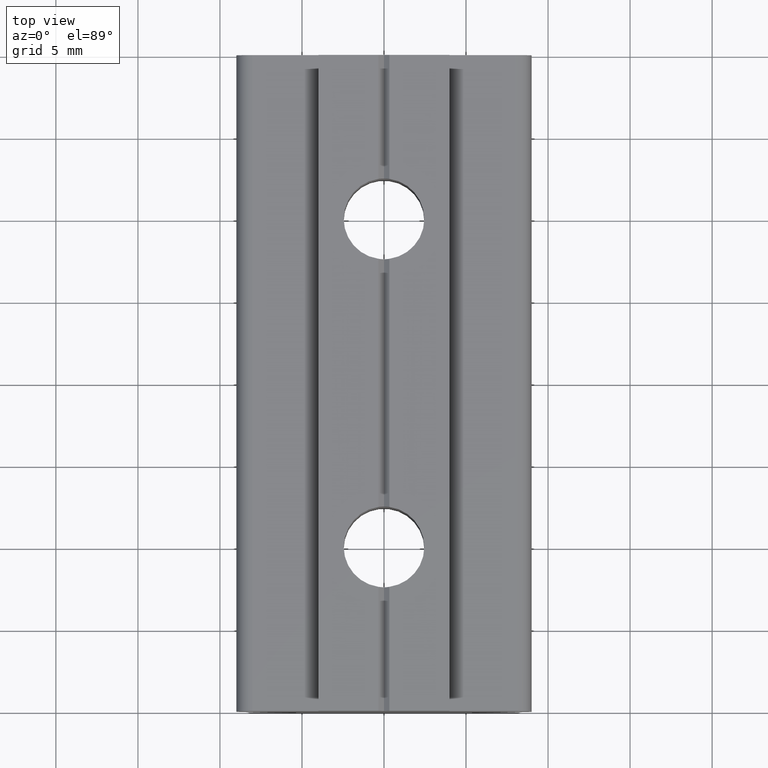
[diagram: clean part render]
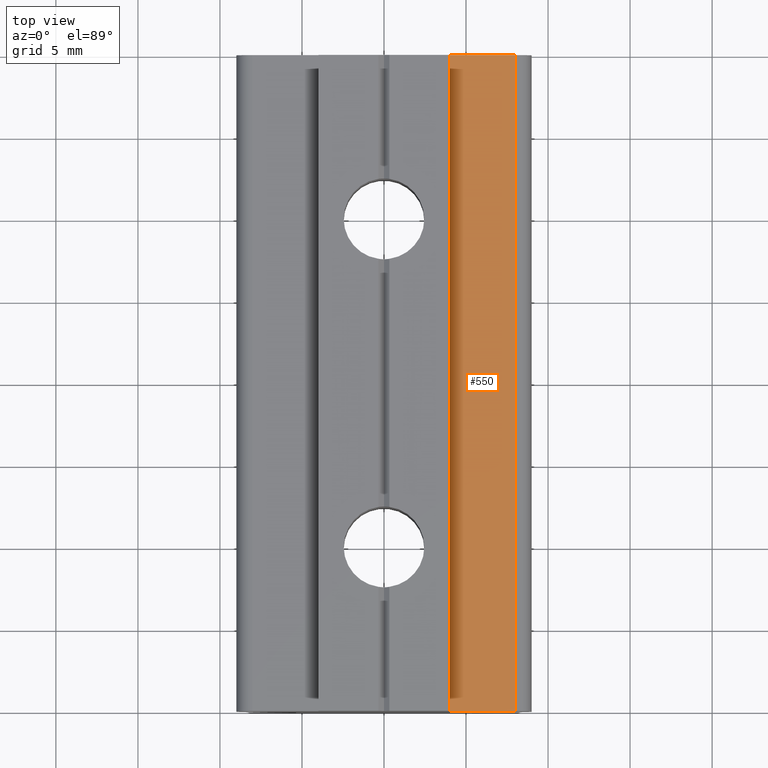
[diagram: same view with one face highlighted and labeled with its STEP entity id]
A machine part, top view. The second image highlights one B-rep face of the part: STEP entity #550.
In plain terms, the highlighted planar face has unit normal (0, 0, 1).
Its self-contained STEP definition (entity closure, byte-faithful):
#28=PLANE('',#628);
#55=FACE_OUTER_BOUND('',#84,.T.);
#84=EDGE_LOOP('',(#457,#458,#459,#460));
#130=LINE('',#934,#183);
#131=LINE('',#938,#184);
#132=LINE('',#940,#185);
#133=LINE('',#941,#186);
#183=VECTOR('',#768,40.);
#184=VECTOR('',#773,3.99999910794887);
#185=VECTOR('',#774,40.);
#186=VECTOR('',#775,3.99999910794887);
#272=VERTEX_POINT('',#931);
#273=VERTEX_POINT('',#933);
#274=VERTEX_POINT('',#937);
#275=VERTEX_POINT('',#939);
#345=EDGE_CURVE('',#272,#273,#130,.T.);
#347=EDGE_CURVE('',#272,#274,#131,.T.);
#348=EDGE_CURVE('',#274,#275,#132,.T.);
#349=EDGE_CURVE('',#273,#275,#133,.T.);
#457=ORIENTED_EDGE('',*,*,#347,.T.);
#458=ORIENTED_EDGE('',*,*,#348,.T.);
#459=ORIENTED_EDGE('',*,*,#349,.F.);
#460=ORIENTED_EDGE('',*,*,#345,.F.);
#550=ADVANCED_FACE('',(#55),#28,.T.);
#628=AXIS2_PLACEMENT_3D('',#936,#771,#772);
#768=DIRECTION('',(0.,-1.,0.));
#771=DIRECTION('center_axis',(0.,0.,1.));
#772=DIRECTION('ref_axis',(1.,0.,0.));
#773=DIRECTION('',(-1.,0.,0.));
#774=DIRECTION('',(0.,-1.,0.));
#775=DIRECTION('',(-1.,0.,0.));
#931=CARTESIAN_POINT('',(7.99999822796453,30.,6.99999845599995));
#933=CARTESIAN_POINT('',(7.99999822796453,-10.,6.99999845599996));
#934=CARTESIAN_POINT('',(7.99999822796453,30.,6.99999845599995));
#936=CARTESIAN_POINT('Origin',(7.99999822796453,30.,6.99999845599995));
#937=CARTESIAN_POINT('',(3.99999912001566,30.,6.99999845599995));
#938=CARTESIAN_POINT('',(7.99999822796453,30.,6.99999845599995));
#939=CARTESIAN_POINT('',(3.99999912001566,-10.,6.99999845599996));
#940=CARTESIAN_POINT('',(3.99999912001566,30.,6.99999845599995));
#941=CARTESIAN_POINT('',(7.99999822796453,-10.,6.99999845599996));